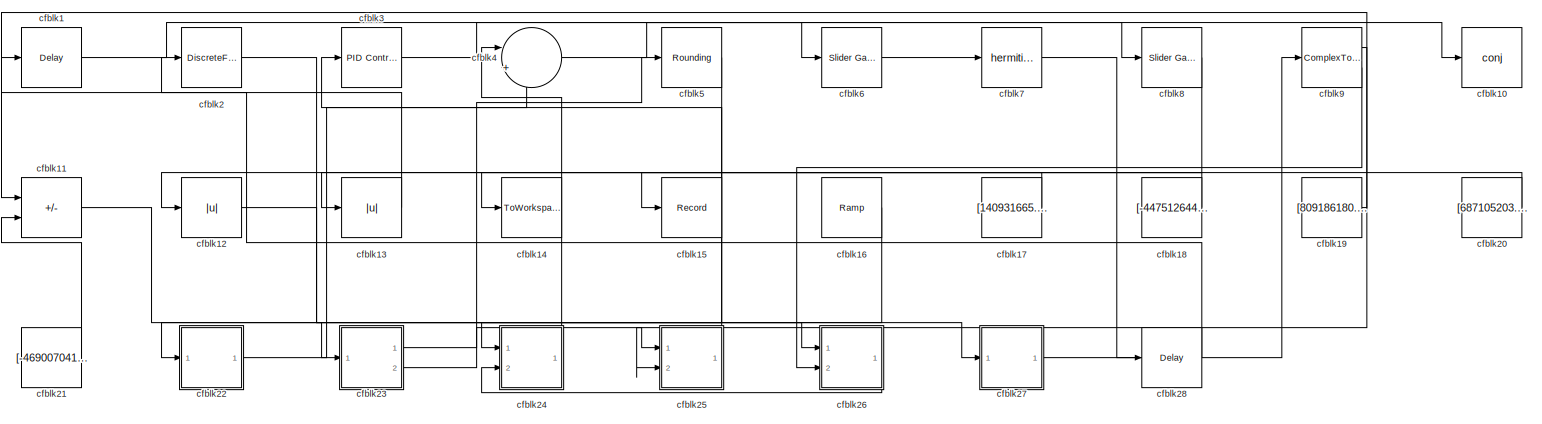
[diagram: root canvas - part 1/1, most of the canvas]
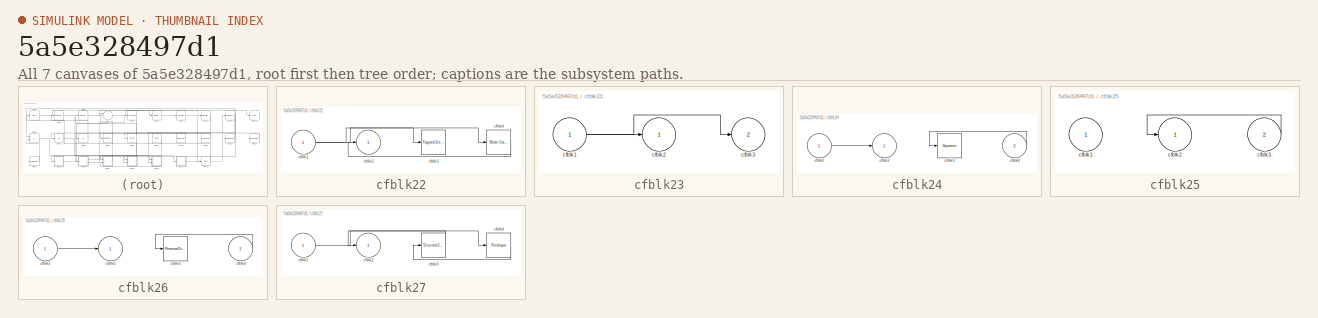
[diagram: thumbnail index - all 7 canvases of the model, root first then tree order]
MODEL slx_5a5e328497d1
KIND model
CONFIG AbsTol = auto
CONFIG EnableMultiTasking = off
CONFIG FixedStep = auto
CONFIG MaxStep = auto
CONFIG MinStep = auto
CONFIG RelTol = 1e-3
CONFIG SampleTimeConstraint = Unconstrained
CONFIG SolverName = VariableStepAuto
CONFIG StartTime = 0.0
CONFIG StopTime = 10.0
BLOCK [Delay] cfblk1
  InputPortMap = u0
  Ports = [1, 1]
  SampleTime = 1
BLOCK [Math] cfblk10
  Operator = conj
  Ports = [1, 1]
BLOCK [Sum] cfblk11
  IconShape = rectangular
  Inputs = --
  Ports = [2, 1]
BLOCK [Abs] cfblk12
  SaturateOnIntegerOverflow = off
BLOCK [Abs] cfblk13
  SaturateOnIntegerOverflow = off
BLOCK [ToWorkspace] cfblk14
  FixptAsFi = on
  MaxDataPoints = inf
  Ports = [1]
  SampleTime = -1
  SaveFormat = Timeseries
  VariableName = xnvwnsl
BLOCK [Record] cfblk15
  FileSettingsInternal = {"entries":[{"content":{"excelSettings":{"content":{},"type":"Streamout.ExcelSettings"}},"type":"Streamout.FileSettingStorage","uuid":"54ea01bb-11ee-411b-9db7-375307b2bc9b"}],"packageUris":["http://schema.mathworks.com/mf0/streamout_blocks/R2020a"],"version":"1.0"}
  Ports = [1]
  SignalsInternal = {"entries":[{"content":{"signals":[{"content":{"blockPath":["sampleModel170/cfblk15"],"channel":[],"dimensions":[1],"domain":"sampleModel170/cfblk15","lineColor":"#22b573","plots":[1],"port":1,"sid":[""],"signalID":6353,"signalName":"cfblk8"},"type":"RecordBlkView.Signal","uuid":"c27c39d6-17b0-4d17-8c05-65d208e17416"}]},"type":"RecordBlkView.InputSignals","uuid":"905179ff-a989-4d47-ae26-5f4de0177f...<+96ch>
  VisualizationBindings = {"sparklinesplugin":{"info":[{"bindingParametersList":[],"subplotID":1}]}}
BLOCK [Reference] cfblk16  REF=simulink/Sources/Ramp
  Ports = [0, 1]
  SourceBlock = simulink/Sources/Ramp
  SourceProductBaseCode = SL
  SourceType = Ramp
BLOCK [Constant] cfblk17
  SampleTime = 1
  Value = [140931665.604478]
BLOCK [Constant] cfblk18
  SampleTime = 1
  Value = [-447512644.409241]
BLOCK [Constant] cfblk19
  SampleTime = 1
  Value = [809186180.542621]
BLOCK [DiscreteFir] cfblk2
  InputPortMap = u0
  OutputPortMap = o0
  Ports = [1, 1]
  SampleTime = 1
BLOCK [Constant] cfblk20
  SampleTime = 1
  Value = [687105203.445594]
BLOCK [Constant] cfblk21
  SampleTime = 1
  Value = [-469007041.326257]
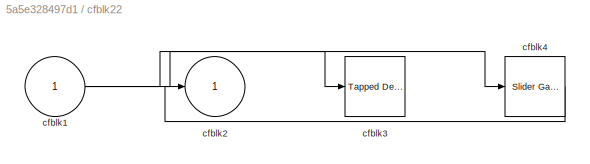
BLOCK [SubSystem] cfblk22
  Ports = [1, 1]
  RequestExecContextInheritance = off
BLOCK [Inport] cfblk22/cfblk1
BLOCK [Outport] cfblk22/cfblk2
BLOCK [Reference] cfblk22/cfblk3  REF=simulink/Discrete/Tapped Delay
  Ports = [1, 1]
  SourceBlock = simulink/Discrete/Tapped Delay
  SourceProductBaseCode = SL
  SourceType = Tapped Delay Line
BLOCK [Reference] cfblk22/cfblk4  REF=simulink/Math
Operations/Slider
Gain
  Ports = [1, 1]
  SourceBlock = simulink/Math\nOperations/Slider\nGain
  SourceProductBaseCode = SL
  SourceType = Slider Gain
BLOCK [SubSystem] cfblk23
  Ports = [1, 2]
  RequestExecContextInheritance = off
BLOCK [Inport] cfblk23/cfblk1
BLOCK [Outport] cfblk23/cfblk2
BLOCK [Outport] cfblk23/cfblk3
  Port = 2
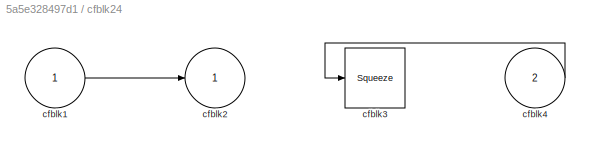
BLOCK [SubSystem] cfblk24
  Ports = [2, 1]
  RequestExecContextInheritance = off
BLOCK [Inport] cfblk24/cfblk1
BLOCK [Outport] cfblk24/cfblk2
BLOCK [Squeeze] cfblk24/cfblk3
BLOCK [Inport] cfblk24/cfblk4
  Port = 2
BLOCK [SubSystem] cfblk25
  Ports = [2, 1]
  RequestExecContextInheritance = off
BLOCK [Inport] cfblk25/cfblk1
BLOCK [Outport] cfblk25/cfblk2
BLOCK [Inport] cfblk25/cfblk3
  Port = 2
BLOCK [SubSystem] cfblk26
  Ports = [2, 1]
  RequestExecContextInheritance = off
BLOCK [Inport] cfblk26/cfblk1
BLOCK [Outport] cfblk26/cfblk2
BLOCK [PermuteDimensions] cfblk26/cfblk3
BLOCK [Inport] cfblk26/cfblk4
  Port = 2
BLOCK [SubSystem] cfblk27
  Ports = [1, 1]
  RequestExecContextInheritance = off
BLOCK [Inport] cfblk27/cfblk1
BLOCK [Outport] cfblk27/cfblk2
BLOCK [DiscreteZeroPole] cfblk27/cfblk3
  Gain = 1
  Poles = [0 0.5]
BLOCK [Reshape] cfblk27/cfblk4
  Ports = [1, 1]
BLOCK [Delay] cfblk28
  InputPortMap = u0
  Ports = [1, 1]
  SampleTime = 1
BLOCK [Reference] cfblk3  REF=slpidlib/PID Controller
  Ports = [1, 1]
  SourceBlock = slpidlib/PID Controller
  SourceProductBaseCode = SL
  SourceType = PID 1dof
BLOCK [Sum] cfblk4
  Inputs = |++
  Ports = [2, 1]
BLOCK [Rounding] cfblk5
BLOCK [Reference] cfblk6  REF=simulink/Math
Operations/Slider
Gain
  Ports = [1, 1]
  SourceBlock = simulink/Math\nOperations/Slider\nGain
  SourceProductBaseCode = SL
  SourceType = Slider Gain
BLOCK [Math] cfblk7
  Operator = hermitian
  Ports = [1, 1]
BLOCK [Reference] cfblk8  REF=simulink/Math
Operations/Slider
Gain
  Ports = [1, 1]
  SourceBlock = simulink/Math\nOperations/Slider\nGain
  SourceProductBaseCode = SL
  SourceType = Slider Gain
BLOCK [ComplexToRealImag] cfblk9
  Ports = [1, 2]
LINE cfblk11:1 -> cfblk23:1
LINE cfblk12:1 -> cfblk26:1
LINE cfblk13:1 -> cfblk1:1
LINE cfblk16:1 -> cfblk22:1
LINE cfblk17:1 -> cfblk12:1
LINE cfblk18:1 -> cfblk14:1
LINE cfblk19:1 -> cfblk11:1
LINE cfblk1:1 -> cfblk10:1
LINE cfblk20:1 -> cfblk13:1
LINE cfblk21:1 -> cfblk11:2
NET cfblk22/cfblk1:1 -> cfblk22/cfblk3:1, cfblk22/cfblk4:1
LINE cfblk22/cfblk4:1 -> cfblk22/cfblk2:1
LINE cfblk22:1 -> cfblk4:2
NET cfblk23/cfblk1:1 -> cfblk23/cfblk2:1, cfblk23/cfblk3:1
LINE cfblk23:1 -> cfblk25:1
LINE cfblk23:2 -> cfblk5:1
LINE cfblk24/cfblk1:1 -> cfblk24/cfblk2:1
LINE cfblk24/cfblk4:1 -> cfblk24/cfblk3:1
LINE cfblk24:1 -> cfblk4:1
LINE cfblk25/cfblk3:1 -> cfblk25/cfblk2:1
LINE cfblk25:1 -> cfblk3:1
LINE cfblk26/cfblk1:1 -> cfblk26/cfblk2:1
LINE cfblk26/cfblk4:1 -> cfblk26/cfblk3:1
LINE cfblk26:1 -> cfblk24:2
LINE cfblk27/cfblk1:1 -> cfblk27/cfblk4:1
LINE cfblk27/cfblk3:1 -> cfblk27/cfblk2:1
LINE cfblk27/cfblk4:1 -> cfblk27/cfblk3:1
LINE cfblk27:1 -> cfblk9:1
LINE cfblk28:1 -> cfblk2:1
LINE cfblk2:1 -> cfblk27:1
LINE cfblk3:1 -> cfblk6:1
LINE cfblk4:1 -> cfblk8:1
LINE cfblk5:1 -> cfblk24:1
LINE cfblk6:1 -> cfblk7:1
LINE cfblk7:1 -> cfblk28:1
LINE cfblk8:1 -> cfblk15:1
LINE cfblk9:1 -> cfblk25:2
LINE cfblk9:2 -> cfblk26:2
note: NET lines group one-source signal fan-out (src -> all destinations, sorted); 1:1 wires keep LINE
